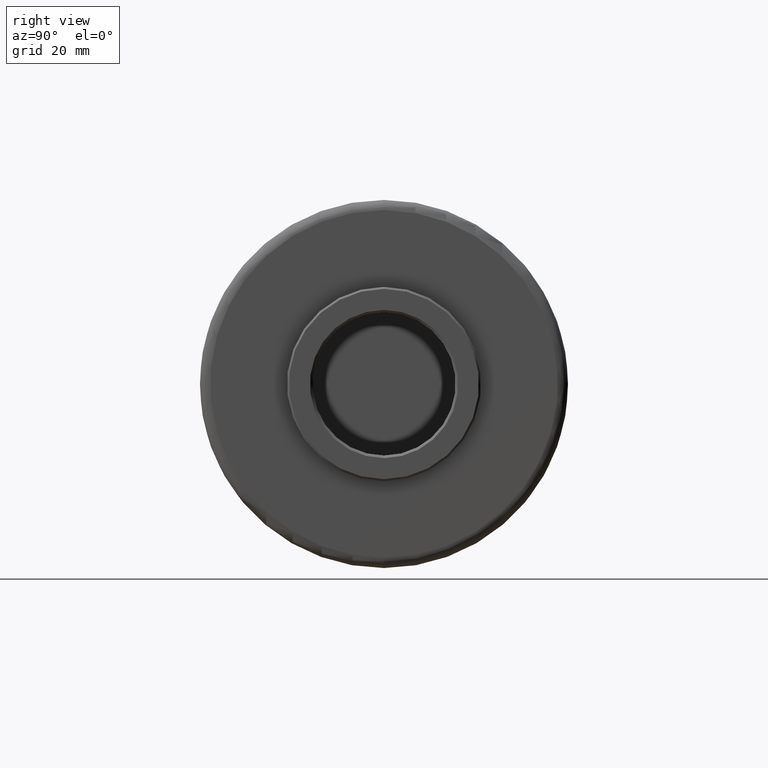
[diagram: clean part render]
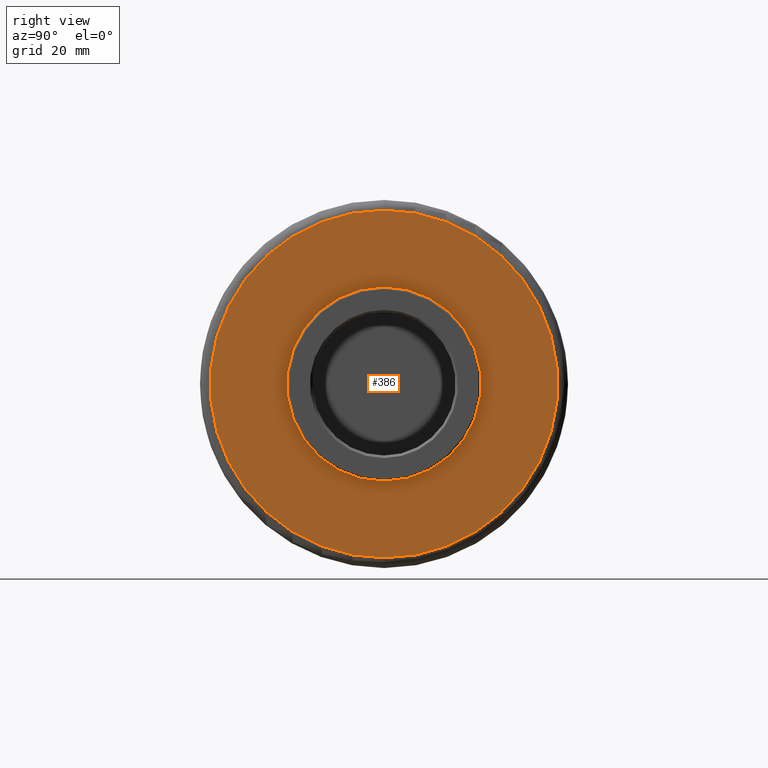
[diagram: same view with one face highlighted and labeled with its STEP entity id]
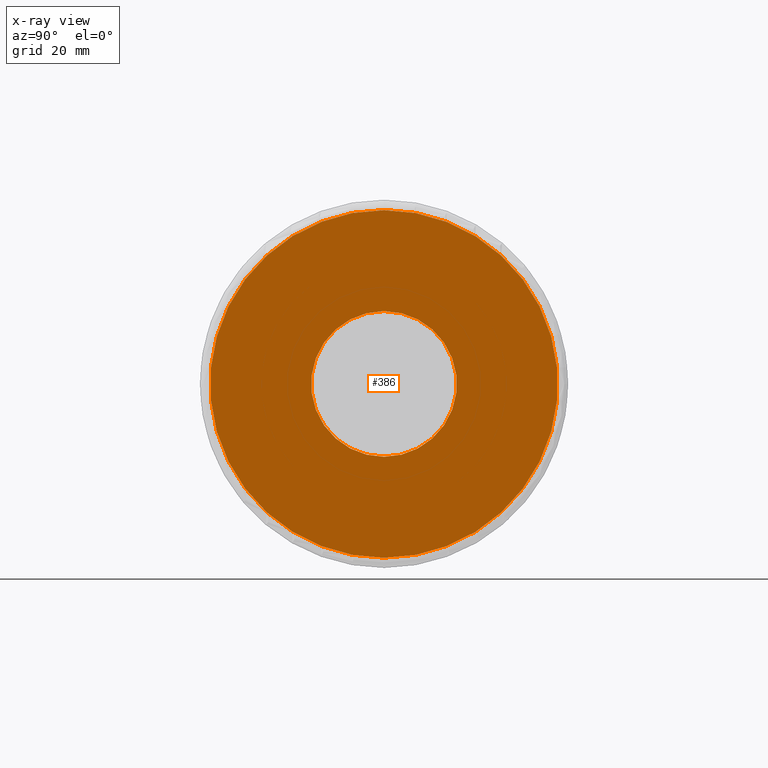
[diagram: x-ray of the same camera — body ghosted, the highlighted face saturated]
A machine part, right view. The second image highlights one B-rep face of the part: STEP entity #386.
The next image is the same camera in x-ray: the body ghosted, the highlighted face saturated — about 0% of this face is hidden behind the body in this view.
In plain terms, the highlighted planar face has unit normal (-1, 0, 0).
Its self-contained STEP definition (entity closure, byte-faithful):
#55 = DIRECTION ( 'NONE',  ( -1.000000000000000000, -4.869399230812090400E-016, -0.0000000000000000000 ) ) ;
#69 = DIRECTION ( 'NONE',  ( 0.0000000000000000000, -1.000000000000000000, 0.0000000000000000000 ) ) ;
#128 = CIRCLE ( 'NONE', #855, 14.24999999999999300 ) ;
#180 = DIRECTION ( 'NONE',  ( 1.000000000000000000, -0.0000000000000000000, -0.0000000000000000000 ) ) ;
#252 = EDGE_CURVE ( 'NONE', #378, #640, #128, .T. ) ;
#266 = EDGE_CURVE ( 'NONE', #945, #646, #1234, .T. ) ;
#282 = DIRECTION ( 'NONE',  ( -1.000000000000000000, 0.0000000000000000000, 0.0000000000000000000 ) ) ;
#286 = CARTESIAN_POINT ( 'NONE',  ( 96.50000000000000000, 0.0000000000000000000, 0.0000000000000000000 ) ) ;
#292 = DIRECTION ( 'NONE',  ( 0.0000000000000000000, 0.0000000000000000000, 1.000000000000000000 ) ) ;
#323 = PLANE ( 'NONE',  #1277 ) ;
#378 = VERTEX_POINT ( 'NONE', #432 ) ;
#386 = ADVANCED_FACE ( 'NONE', ( #1137, #886 ), #323, .F. ) ;
#432 = CARTESIAN_POINT ( 'NONE',  ( 96.50000000000002800, 1.745121688784977800E-015, -14.24999999999999300 ) ) ;
#497 = EDGE_LOOP ( 'NONE', ( #1298, #502 ) ) ;
#502 = ORIENTED_EDGE ( 'NONE', *, *, #252, .T. ) ;
#548 = CARTESIAN_POINT ( 'NONE',  ( 96.50000000000000000, 33.90200000000000100, -33.90200000000000100 ) ) ;
#570 = AXIS2_PLACEMENT_3D ( 'NONE', #1354, #729, #69 ) ;
#586 = CARTESIAN_POINT ( 'NONE',  ( 96.50000000000000000, 4.286263797015737300E-015, -34.00000000000000700 ) ) ;
#640 = VERTEX_POINT ( 'NONE', #1385 ) ;
#646 = VERTEX_POINT ( 'NONE', #969 ) ;
#715 = CARTESIAN_POINT ( 'NONE',  ( 96.50000000000002800, 1.232595164407830900E-029, 0.0000000000000000000 ) ) ;
#729 = DIRECTION ( 'NONE',  ( -1.000000000000000000, -4.869399230812090400E-016, -0.0000000000000000000 ) ) ;
#815 = DIRECTION ( 'NONE',  ( 0.0000000000000000000, -1.000000000000000000, 0.0000000000000000000 ) ) ;
#820 = CARTESIAN_POINT ( 'NONE',  ( 96.50000000000000000, 0.0000000000000000000, 0.0000000000000000000 ) ) ;
#843 = AXIS2_PLACEMENT_3D ( 'NONE', #286, #1032, #1225 ) ;
#852 = CIRCLE ( 'NONE', #1113, 34.00000000000000700 ) ;
#855 = AXIS2_PLACEMENT_3D ( 'NONE', #715, #55, #815 ) ;
#886 = FACE_BOUND ( 'NONE', #497, .T. ) ;
#945 = VERTEX_POINT ( 'NONE', #586 ) ;
#969 = CARTESIAN_POINT ( 'NONE',  ( 96.50000000000000000, 0.0000000000000000000, 34.00000000000000700 ) ) ;
#1032 = DIRECTION ( 'NONE',  ( 1.000000000000000000, -0.0000000000000000000, -0.0000000000000000000 ) ) ;
#1113 = AXIS2_PLACEMENT_3D ( 'NONE', #820, #180, #292 ) ;
#1119 = EDGE_CURVE ( 'NONE', #646, #945, #852, .T. ) ;
#1137 = FACE_OUTER_BOUND ( 'NONE', #1333, .T. ) ;
#1145 = EDGE_CURVE ( 'NONE', #640, #378, #1377, .T. ) ;
#1221 = ORIENTED_EDGE ( 'NONE', *, *, #266, .T. ) ;
#1225 = DIRECTION ( 'NONE',  ( 0.0000000000000000000, 0.0000000000000000000, 1.000000000000000000 ) ) ;
#1234 = CIRCLE ( 'NONE', #843, 34.00000000000000700 ) ;
#1277 = AXIS2_PLACEMENT_3D ( 'NONE', #548, #282, #1304 ) ;
#1298 = ORIENTED_EDGE ( 'NONE', *, *, #1145, .T. ) ;
#1304 = DIRECTION ( 'NONE',  ( 0.0000000000000000000, 0.0000000000000000000, 1.000000000000000000 ) ) ;
#1333 = EDGE_LOOP ( 'NONE', ( #1335, #1221 ) ) ;
#1335 = ORIENTED_EDGE ( 'NONE', *, *, #1119, .T. ) ;
#1354 = CARTESIAN_POINT ( 'NONE',  ( 96.50000000000002800, 1.232595164407830900E-029, 0.0000000000000000000 ) ) ;
#1377 = CIRCLE ( 'NONE', #570, 14.24999999999999300 ) ;
#1385 = CARTESIAN_POINT ( 'NONE',  ( 96.50000000000002800, 2.736911063134408300E-045, 14.24999999999999300 ) ) ;